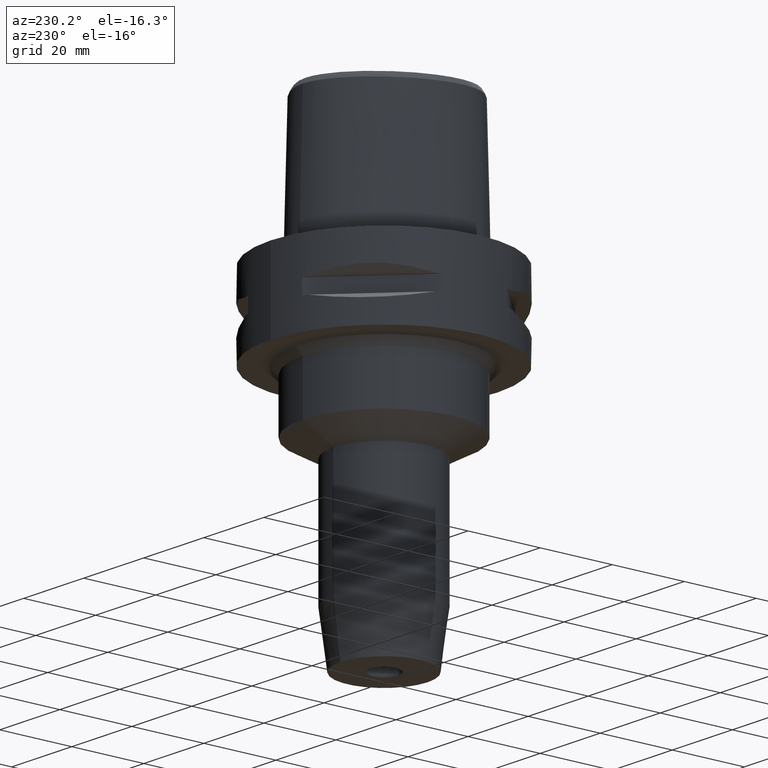
[diagram: clean part render]
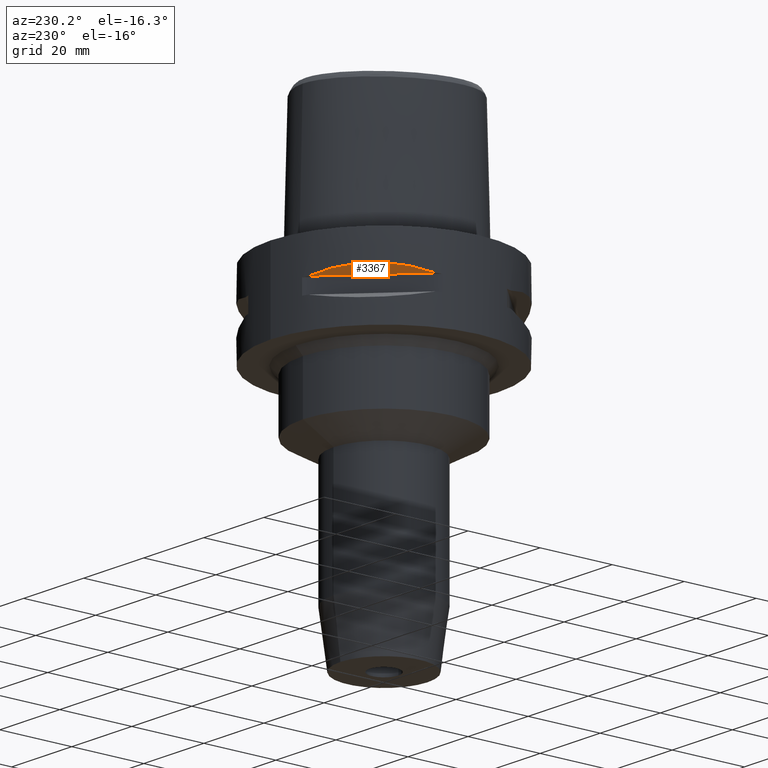
[diagram: same view with one face highlighted and labeled with its STEP entity id]
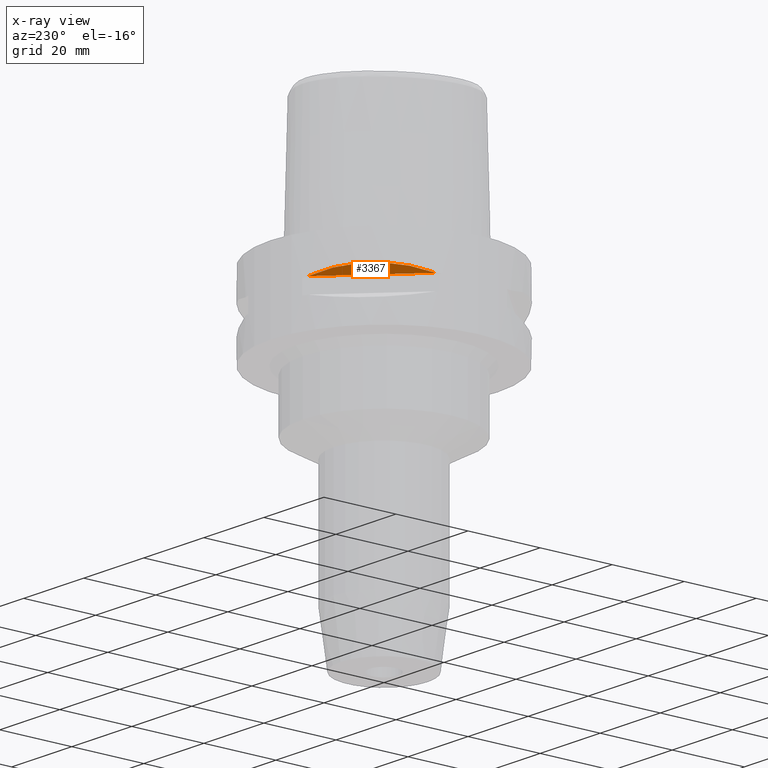
[diagram: x-ray of the same camera — body ghosted, the highlighted face saturated]
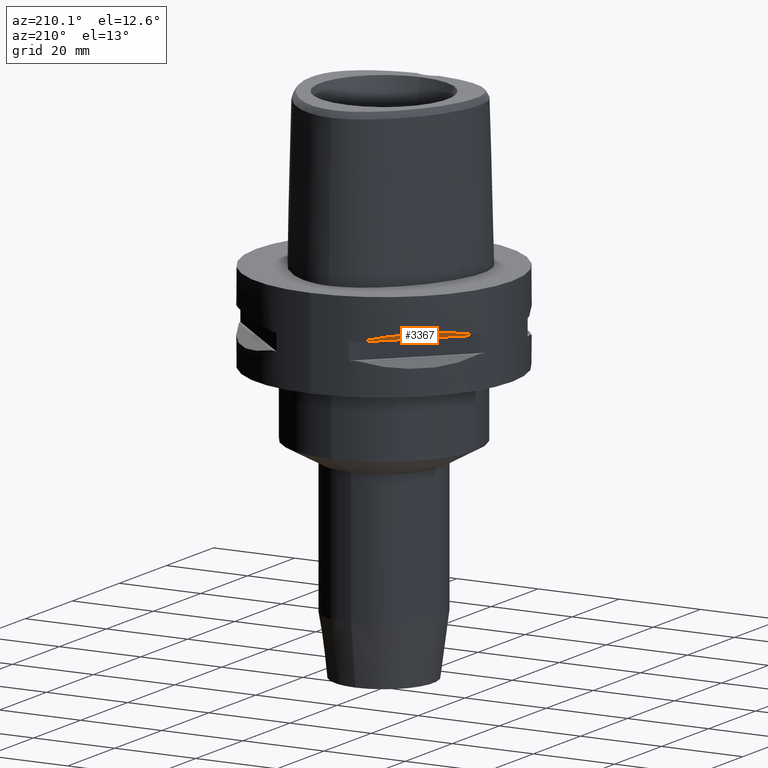
[diagram: same view with one face highlighted and labeled with its STEP entity id]
A machine part, auxiliary view. The second image highlights one B-rep face of the part: STEP entity #3367.
The next image is the same camera in x-ray: the body ghosted, the highlighted face saturated — about 0% of this face is hidden behind the body in this view.
A second angle (auxiliary view) of the same face is appended — the face is thin or edge-on in the first view.
In plain terms, the highlighted planar face has unit normal (0.3536, -0.3536, 0.866).
Its self-contained STEP definition (entity closure, byte-faithful):
#1408=CARTESIAN_POINT('',(-1.044775724750E1,2.971690375018E1,
-9.949999999999E0));
#1409=CARTESIAN_POINT('',(-1.282388988809E1,2.888151197365E1,
-9.320995176198E0));
#1410=CARTESIAN_POINT('',(-1.711282138769E1,2.674739463903E1,
-8.441295977074E0));
#1411=CARTESIAN_POINT('',(-2.244574140438E1,2.244574140438E1,
-8.020283076294E0));
#1412=CARTESIAN_POINT('',(-2.674739463903E1,1.711282138769E1,
-8.441295977074E0));
#1413=CARTESIAN_POINT('',(-2.888151197365E1,1.282388988809E1,
-9.320995176198E0));
#1414=CARTESIAN_POINT('',(-2.971690375018E1,1.044775724750E1,
-9.949999999999E0));
#1435=DIRECTION('',(-7.071067811865E-1,-7.071067811865E-1,0.E0));
#1436=VECTOR('',#1435,2.725068831944E1);
#1437=CARTESIAN_POINT('',(-1.044775724750E1,2.971690375018E1,
-9.949999999999E0));
#1438=LINE('',#1437,#1436);
#1584=VERTEX_POINT('',#1408);
#1585=VERTEX_POINT('',#1414);
#3357=CARTESIAN_POINT('',(-3.712310601229E1,8.838834764832E0,
-7.583270440699E0));
#3358=DIRECTION('',(3.535533905933E-1,-3.535533905933E-1,8.660254037844E-1));
#3359=DIRECTION('',(6.123724356958E-1,-6.123724356958E-1,-5.E-1));
#3360=AXIS2_PLACEMENT_3D('',#3357,#3358,#3359);
#3361=PLANE('',#3360);
#3362=ORIENTED_EDGE('',*,*,#2433,.T.);
#3364=ORIENTED_EDGE('',*,*,#3363,.F.);
#3365=EDGE_LOOP('',(#3362,#3364));
#3366=FACE_OUTER_BOUND('',#3365,.F.);
#1415=B_SPLINE_CURVE_WITH_KNOTS('',3,(#1408,#1409,#1410,#1411,#1412,#1413,
#1414),.UNSPECIFIED.,.F.,.F.,(4,1,1,1,4),(0.E0,2.5E-1,5.E-1,7.5E-1,1.E0),
.UNSPECIFIED.);
#2433=EDGE_CURVE('',#1584,#1585,#1415,.T.);
#3363=EDGE_CURVE('',#1584,#1585,#1438,.T.);
#3367=ADVANCED_FACE('',(#3366),#3361,.F.);